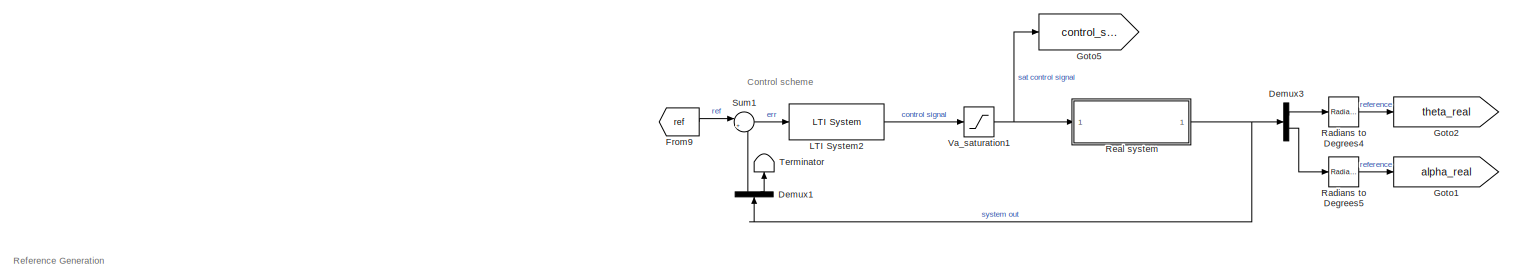
[diagram: root canvas - part 1/3, full width, top band]
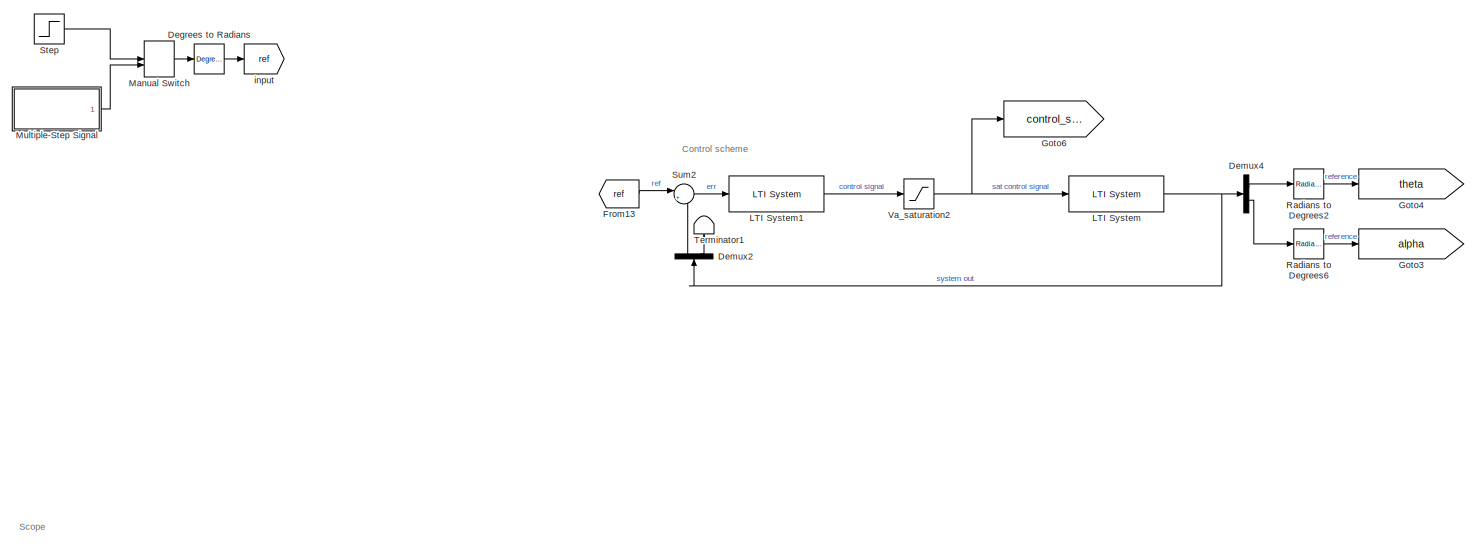
[diagram: root canvas - part 2/3, full width, middle band]
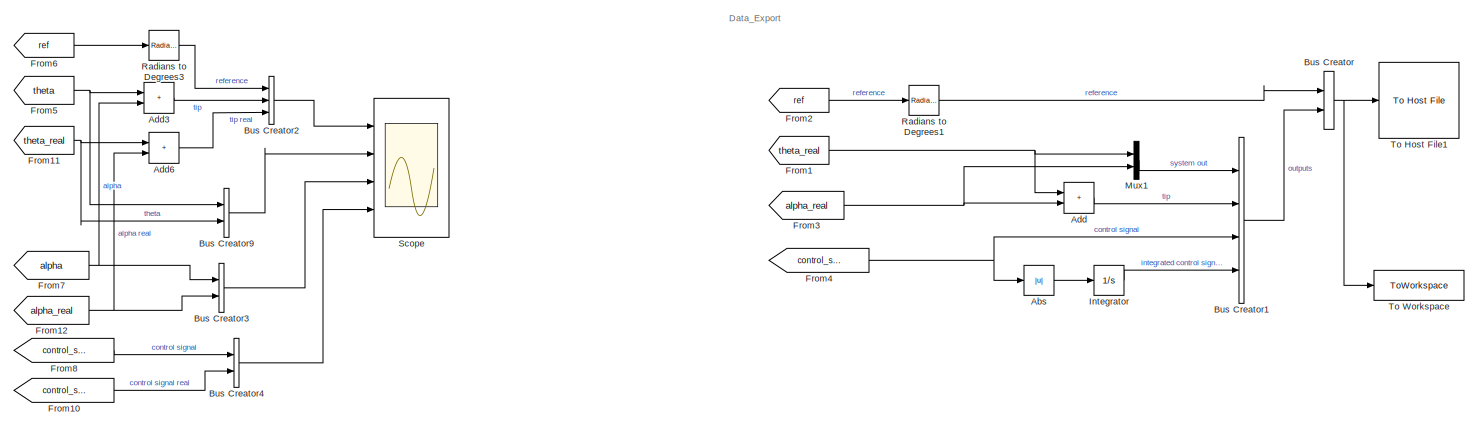
[diagram: root canvas - part 3/3, full width, bottom band]
MODEL slx_6573b0b47f84
KIND model
CONFIG AbsTol = auto
CONFIG EnableMultiTasking = off
CONFIG FixedStep = auto
CONFIG MaxStep = auto
CONFIG MinStep = auto
CONFIG RelTol = 1e-3
CONFIG SampleTimeConstraint = Unconstrained
CONFIG Solver = VariableStepAuto
CONFIG SolverName = VariableStepAuto
CONFIG StartTime = 0.0
CONFIG StopTime = 10.0
BLOCK [Abs] Abs
  Commented = on
  SaturateOnIntegerOverflow = off
BLOCK [Sum] Add
  Commented = on
  IconShape = rectangular
  Ports = [2, 1]
BLOCK [Sum] Add3
  IconShape = rectangular
  Ports = [2, 1]
BLOCK [Sum] Add6
  IconShape = rectangular
  Ports = [2, 1]
BLOCK [BusCreator] Bus Creator
  Commented = on
  DisplayOption = bar
  InheritFromInputs = on
  Inputs = 2
  Ports = [2, 1]
BLOCK [BusCreator] Bus Creator1
  Commented = on
  DisplayOption = bar
  InheritFromInputs = on
  Inputs = 4
  Ports = [4, 1]
BLOCK [BusCreator] Bus Creator2
  DisplayOption = bar
  InheritFromInputs = on
  Inputs = 3
  Ports = [3, 1]
BLOCK [BusCreator] Bus Creator3
  DisplayOption = bar
  InheritFromInputs = on
  Inputs = 2
  Ports = [2, 1]
BLOCK [BusCreator] Bus Creator4
  DisplayOption = bar
  InheritFromInputs = on
  Inputs = 2
  Ports = [2, 1]
BLOCK [BusCreator] Bus Creator9
  DisplayOption = bar
  InheritFromInputs = on
  Inputs = 2
  Ports = [2, 1]
BLOCK [Reference] Degrees to Radians  REF=simulink_extras/Transformations/Degrees to
Radians
  Ports = [1, 1]
  SourceBlock = simulink_extras/Transformations/Degrees to\nRadians
  SourceType = DegreesToRadians
BLOCK [Demux] Demux1
  Commented = on
  Outputs = 2
  Ports = [1, 2]
BLOCK [Demux] Demux2
  Outputs = 2
  Ports = [1, 2]
BLOCK [Demux] Demux3
  Commented = on
  Outputs = 2
  Ports = [1, 2]
BLOCK [Demux] Demux4
  Outputs = 2
  Ports = [1, 2]
BLOCK [From] From1
  Commented = on
  GotoTag = theta_real
BLOCK [From] From10
  GotoTag = control_signal_real
BLOCK [From] From11
  GotoTag = theta_real
BLOCK [From] From12
  GotoTag = alpha_real
BLOCK [From] From13
  GotoTag = ref
BLOCK [From] From2
  Commented = on
  GotoTag = ref
BLOCK [From] From3
  Commented = on
  GotoTag = alpha_real
BLOCK [From] From4
  Commented = on
  GotoTag = control_signal
BLOCK [From] From5
  GotoTag = theta
BLOCK [From] From6
  GotoTag = ref
BLOCK [From] From7
  GotoTag = alpha
BLOCK [From] From8
  GotoTag = control_signal
BLOCK [From] From9
  Commented = on
  GotoTag = ref
BLOCK [Goto] Goto1
  Commented = on
  GotoTag = alpha_real
BLOCK [Goto] Goto2
  Commented = on
  GotoTag = theta_real
BLOCK [Goto] Goto3
  GotoTag = alpha
BLOCK [Goto] Goto4
  GotoTag = theta
BLOCK [Goto] Goto5
  Commented = on
  GotoTag = control_signal_real
BLOCK [Goto] Goto6
  GotoTag = control_signal_real
BLOCK [Integrator] Integrator
  Commented = on
  Ports = [1, 1]
BLOCK [Reference] LTI System  REF=cstblocks/LTI System
  Ports = [1, 1]
  SourceBlock = cstblocks/LTI System
  SourceType = LTI Block
BLOCK [Reference] LTI System1  REF=cstblocks/LTI System
  Ports = [1, 1]
  SourceBlock = cstblocks/LTI System
  SourceType = LTI Block
BLOCK [Reference] LTI System2  REF=cstblocks/LTI System
  Commented = on
  Ports = [1, 1]
  SourceBlock = cstblocks/LTI System
  SourceType = LTI Block
BLOCK [ManualSwitch] Manual Switch
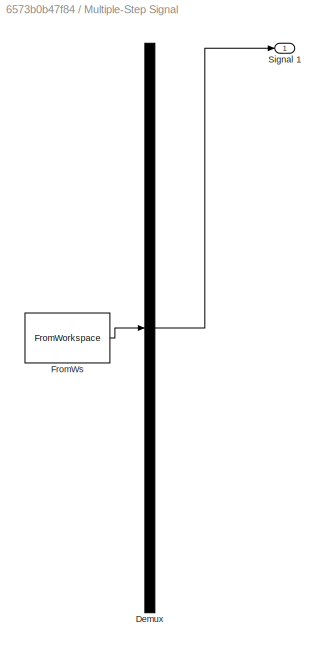
BLOCK [SubSystem] Multiple-Step Signal
  ClipboardFcn = sigbuilder_block('clipboard');
  CloseFcn = sigbuilder_block('close');
  ContinueFcn = sigbuilder_block('continue');
  CopyFcn = sigbuilder_block('copy');
  DeleteFcn = sigbuilder_block('delete');
  LoadFcn = sigbuilder_block('load');
  MaskHideContents = on
  ModelCloseFcn = sigbuilder_block('modelClose');
  NameChangeFcn = sigbuilder_block('namechange');
  OpenFcn = sigbuilder_block('open',[437.6 199.2 550.4 400 ]);
  PauseFcn = sigbuilder_block('pause');
  Ports = [0, 1]
  PreSaveFcn = sigbuilder_block('preSave');
  StartFcn = sigbuilder_block('start');
  StopFcn = sigbuilder_block('stop');
  Tag = STV Subsys
BLOCK [Demux] Multiple-Step Signal/Demux
  DisplayOption = none
  Outputs = 1
  Ports = [1, 1]
  Tag = STV Demux
BLOCK [FromWorkspace] Multiple-Step Signal/FromWs
  Tag = STV FromWs
  VariableName = tuvar
BLOCK [Outport] Multiple-Step Signal/Signal 1
  Tag = STV Outport
BLOCK [Mux] Mux1
  Commented = on
  DisplayOption = bar
  Inputs = 2
  Ports = [2, 1]
BLOCK [Reference] Radians to Degrees1  REF=simulink_extras/Transformations/Radians
to Degrees
  Commented = on
  Ports = [1, 1]
  SourceBlock = simulink_extras/Transformations/Radians\nto Degrees
  SourceType = RadiansToDegrees
BLOCK [Reference] Radians to Degrees2  REF=simulink_extras/Transformations/Radians
to Degrees
  Ports = [1, 1]
  SourceBlock = simulink_extras/Transformations/Radians\nto Degrees
  SourceType = RadiansToDegrees
BLOCK [Reference] Radians to Degrees3  REF=simulink_extras/Transformations/Radians
to Degrees
  Ports = [1, 1]
  SourceBlock = simulink_extras/Transformations/Radians\nto Degrees
  SourceType = RadiansToDegrees
BLOCK [Reference] Radians to Degrees4  REF=simulink_extras/Transformations/Radians
to Degrees
  Commented = on
  Ports = [1, 1]
  SourceBlock = simulink_extras/Transformations/Radians\nto Degrees
  SourceType = RadiansToDegrees
BLOCK [Reference] Radians to Degrees5  REF=simulink_extras/Transformations/Radians
to Degrees
  Commented = on
  Ports = [1, 1]
  SourceBlock = simulink_extras/Transformations/Radians\nto Degrees
  SourceType = RadiansToDegrees
BLOCK [Reference] Radians to Degrees6  REF=simulink_extras/Transformations/Radians
to Degrees
  Ports = [1, 1]
  SourceBlock = simulink_extras/Transformations/Radians\nto Degrees
  SourceType = RadiansToDegrees
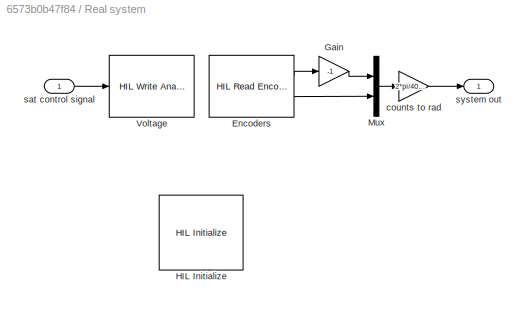
BLOCK [SubSystem] Real system
  Commented = on
  Ports = [1, 1]
BLOCK [Reference] Real system/Encoders  REF=quarc_library/Data Acquisition/Generic/Timebases/HIL Read Encoder
Timebase
  AttributesFormatString = (%<object_name>)
  Ports = [0, 2]
  SourceBlock = quarc_library/Data Acquisition/Generic/Timebases/HIL Read Encoder\nTimebase
  SourceType = HIL Read Encoder Timebase
  UserDataPersistent = on
BLOCK [Gain] Real system/Gain
  Gain = -1
BLOCK [Reference] Real system/HIL Initialize  REF=quarc_library/Data Acquisition/Generic/Configuration/HIL Initialize
  AttributesFormatString = %<object_name> (%<board_type>-%<board_number>)
  Commented = on
  Ports = []
  Priority = -99
  SourceBlock = quarc_library/Data Acquisition/Generic/Configuration/HIL Initialize
  SourceType = HIL Initialize
  UserDataPersistent = on
BLOCK [Mux] Real system/Mux
  DisplayOption = bar
  Inputs = 2
  Ports = [2, 1]
BLOCK [Reference] Real system/Voltage  REF=quarc_library/Data Acquisition/Generic/Immediate I//O/HIL Write Analog
  AttributesFormatString = (%<object_name>)
  Ports = [1]
  SourceBlock = quarc_library/Data Acquisition/Generic/Immediate I//O/HIL Write Analog
  SourceType = HIL Write Analog
  UserDataPersistent = on
BLOCK [Gain] Real system/counts to rad
  Gain = 2*pi/4096
BLOCK [Inport] Real system/sat control signal
BLOCK [Outport] Real system/system out
BLOCK [Scope] Scope
  Floating = off
  NumInputPorts = 4
  Ports = [4]
  ScopeSpecificationString = Simulink.scopes.TimeScopeBlockCfg('CurrentConfiguration', extmgr.ConfigurationSet(extmgr.Configuration('Core','General UI',true,'FigureColor',[1 1 1]),extmgr.Configuration('Core','Source UI',true),extmgr.Configuration('Sources','WiredSimulink',true,'DataLoggingVariableName','ScopeData1'),extmgr.Configuration('Visuals','Time Domain',true,'SerializedDisplays',{struct('MinYLimReal','-7.62973','MaxYLi...<+4557ch>
BLOCK [Step] Step
  After = 45
  SampleTime = 0
BLOCK [Sum] Sum1
  Commented = on
  Inputs = |+-
  Ports = [2, 1]
BLOCK [Sum] Sum2
  Inputs = |+-
  Ports = [2, 1]
BLOCK [Terminator] Terminator
  Commented = on
BLOCK [Terminator] Terminator1
BLOCK [Reference] To Host File1  REF=quarc_library/Sinks/To Host/To Host File
  AttributesFormatString = %<final_file_name>
  Commented = on
  Ports = [1]
  SourceBlock = quarc_library/Sinks/To Host/To Host File
  SourceType = To Host File
BLOCK [ToWorkspace] To Workspace
  Commented = on
  FixptAsFi = on
  MaxDataPoints = inf
  Ports = [1]
  SampleTime = -1
  SaveFormat = Timeseries
  VariableName = data
BLOCK [Saturate] Va_saturation1
  Commented = on
  LowerLimit = -v_a_max
  UpperLimit = v_a_max
BLOCK [Saturate] Va_saturation2
  LowerLimit = -v_a_max
  UpperLimit = v_a_max
BLOCK [Goto] input
  GotoTag = ref
ANNOTATION (root): Control scheme
ANNOTATION (root): Data_Export
ANNOTATION (root): Reference Generation
ANNOTATION (root): Scope
LINE Abs:1 -> Integrator:1
LINE Add3:1 -> Bus Creator2:2
LINE Add6:1 -> Bus Creator2:3
LINE Add:1 -> Bus Creator1:2
LINE Bus Creator1:1 -> Bus Creator:2
LINE Bus Creator2:1 -> Scope:1
LINE Bus Creator3:1 -> Scope:3
LINE Bus Creator4:1 -> Scope:4
LINE Bus Creator9:1 -> Scope:2
NET Bus Creator:1 -> To Host File1:1, To Workspace:1
LINE Degrees to Radians:1 -> input:1
LINE Demux1:1 -> Sum1:2
LINE Demux1:2 -> Terminator:1
LINE Demux2:1 -> Sum2:2
LINE Demux2:2 -> Terminator1:1
LINE Demux3:1 -> Radians to Degrees4:1
LINE Demux3:2 -> Radians to Degrees5:1
LINE Demux4:1 -> Radians to Degrees2:1
LINE Demux4:2 -> Radians to Degrees6:1
LINE From10:1 -> Bus Creator4:2
NET From11:1 -> Add6:1, Bus Creator9:2
NET From12:1 -> Add6:2, Bus Creator3:2
LINE From13:1 -> Sum2:1
NET From1:1 -> Add:1, Mux1:1
LINE From2:1 -> Radians to Degrees1:1
NET From3:1 -> Add:2, Mux1:2
NET From4:1 -> Abs:1, Bus Creator1:3
NET From5:1 -> Add3:1, Bus Creator9:1
LINE From6:1 -> Radians to Degrees3:1
NET From7:1 -> Add3:2, Bus Creator3:1
LINE From8:1 -> Bus Creator4:1
LINE From9:1 -> Sum1:1
LINE Integrator:1 -> Bus Creator1:4
LINE LTI System1:1 -> Va_saturation2:1
LINE LTI System2:1 -> Va_saturation1:1
NET LTI System:1 -> Demux2:1, Demux4:1
LINE Manual Switch:1 -> Degrees to Radians:1
LINE Multiple-Step Signal:1 -> Manual Switch:2
LINE Mux1:1 -> Bus Creator1:1
LINE Radians to Degrees1:1 -> Bus Creator:1
LINE Radians to Degrees2:1 -> Goto4:1
LINE Radians to Degrees3:1 -> Bus Creator2:1
LINE Radians to Degrees4:1 -> Goto2:1
LINE Radians to Degrees5:1 -> Goto1:1
LINE Radians to Degrees6:1 -> Goto3:1
LINE Real system/Encoders:1 -> Real system/Gain:1
LINE Real system/Encoders:2 -> Real system/Mux:2
LINE Real system/Gain:1 -> Real system/Mux:1
LINE Real system/Mux:1 -> Real system/counts to rad:1
LINE Real system/counts to rad:1 -> Real system/system out:1
LINE Real system/sat control signal:1 -> Real system/Voltage:1
NET Real system:1 -> Demux1:1, Demux3:1
LINE Step:1 -> Manual Switch:1
LINE Sum1:1 -> LTI System2:1
LINE Sum2:1 -> LTI System1:1
NET Va_saturation1:1 -> Goto5:1, Real system:1
NET Va_saturation2:1 -> Goto6:1, LTI System:1
note: NET lines group one-source signal fan-out (src -> all destinations, sorted); 1:1 wires keep LINE
